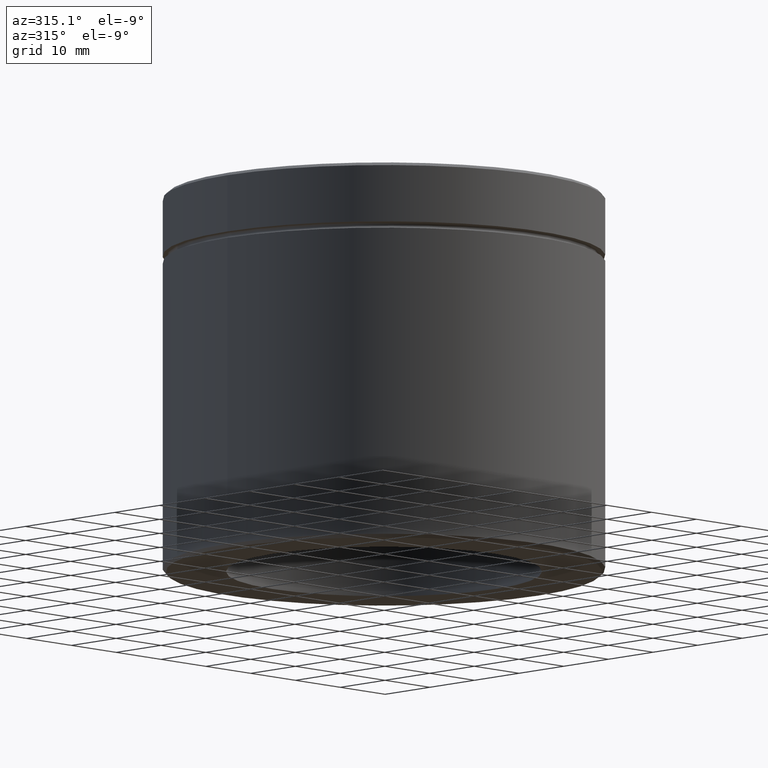
[diagram: clean part render]
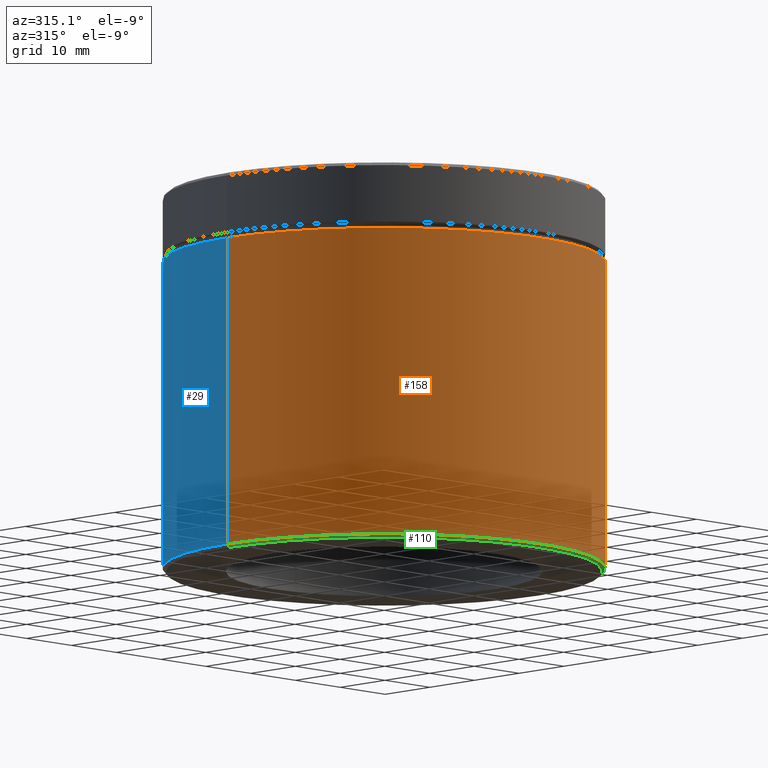
[diagram: same view with three faces highlighted in distinct colors, each labeled with its STEP entity id]
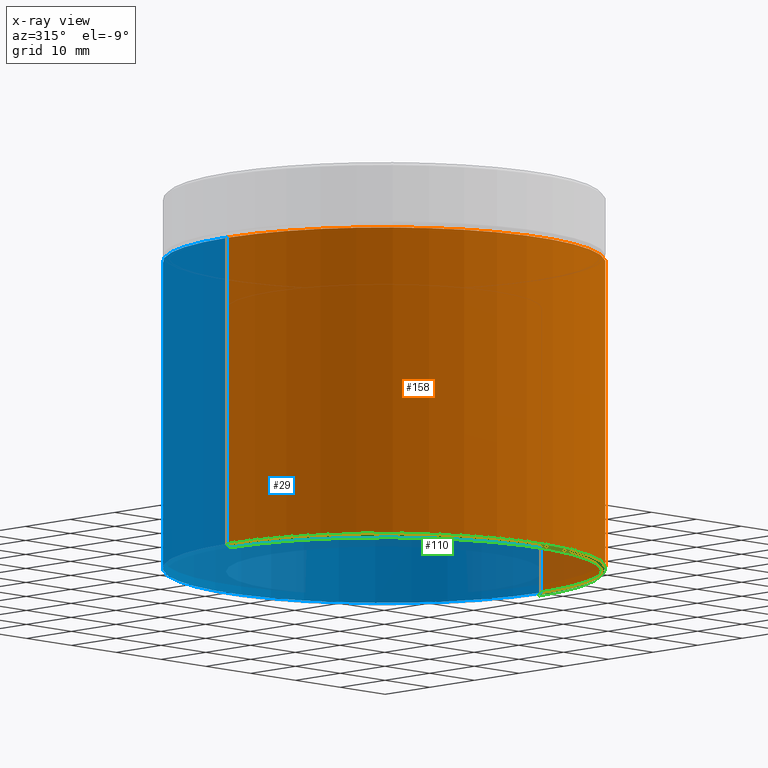
[diagram: x-ray of the same camera — body ghosted, the three highlighted faces saturated]
A machine part, auxiliary view with three faces highlighted in distinct colors.
The next image is the same camera in x-ray (body ghosted, the three faces saturated) — at least one of them is partly hidden behind the body in this view.
Their STEP definitions:

[orange] entity #158 — the highlighted cylindrical surface (partial cylindrical patch) has radius 35 mm, axis along (-0, -0, 1).
#10 = VECTOR ( 'NONE', #418, 1000.000000000000000 ) ;
#23 = EDGE_CURVE ( 'NONE', #166, #345, #64, .T. ) ;
#30 = CYLINDRICAL_SURFACE ( 'NONE', #56, 35.00000000000000000 ) ;
#32 = AXIS2_PLACEMENT_3D ( 'NONE', #61, #53, #186 ) ;
#41 = VERTEX_POINT ( 'NONE', #385 ) ;
#53 = DIRECTION ( 'NONE',  ( -0.000000000000000000, -0.000000000000000000, 1.000000000000000000 ) ) ;
#56 = AXIS2_PLACEMENT_3D ( 'NONE', #393, #446, #529 ) ;
#60 = LINE ( 'NONE', #547, #10 ) ;
#61 = CARTESIAN_POINT ( 'NONE',  ( 0.000000000000000000, 0.000000000000000000, -59.50000000000001421 ) ) ;
#64 = CIRCLE ( 'NONE', #153, 35.00000000000000000 ) ;
#74 = EDGE_LOOP ( 'NONE', ( #264, #382, #461, #257 ) ) ;
#77 = CARTESIAN_POINT ( 'NONE',  ( 0.000000000000000000, 0.000000000000000000, -10.50000000000000000 ) ) ;
#95 = CARTESIAN_POINT ( 'NONE',  ( 35.00000000000000000, 0.000000000000000000, -59.50000000000001421 ) ) ;
#127 = CARTESIAN_POINT ( 'NONE',  ( -35.00000000000000000, 4.286263797015736496E-15, -10.50000000000000000 ) ) ;
#148 = VECTOR ( 'NONE', #241, 1000.000000000000000 ) ;
#153 = AXIS2_PLACEMENT_3D ( 'NONE', #77, #554, #291 ) ;
#158 = ADVANCED_FACE ( 'NONE', ( #492 ), #30, .T. ) ;
#166 = VERTEX_POINT ( 'NONE', #127 ) ;
#186 = DIRECTION ( 'NONE',  ( -1.000000000000000000, 0.000000000000000000, 0.000000000000000000 ) ) ;
#241 = DIRECTION ( 'NONE',  ( -0.000000000000000000, -0.000000000000000000, 1.000000000000000000 ) ) ;
#257 = ORIENTED_EDGE ( 'NONE', *, *, #23, .F. ) ;
#264 = ORIENTED_EDGE ( 'NONE', *, *, #426, .F. ) ;
#279 = CIRCLE ( 'NONE', #32, 35.00000000000000000 ) ;
#291 = DIRECTION ( 'NONE',  ( 1.000000000000000000, 0.000000000000000000, 0.000000000000000000 ) ) ;
#299 = EDGE_CURVE ( 'NONE', #41, #439, #279, .T. ) ;
#345 = VERTEX_POINT ( 'NONE', #508 ) ;
#382 = ORIENTED_EDGE ( 'NONE', *, *, #299, .T. ) ;
#385 = CARTESIAN_POINT ( 'NONE',  ( -35.00000000000000000, 4.286263797015736496E-15, -59.50000000000001421 ) ) ;
#393 = CARTESIAN_POINT ( 'NONE',  ( 0.000000000000000000, 0.000000000000000000, 0.000000000000000000 ) ) ;
#418 = DIRECTION ( 'NONE',  ( -0.000000000000000000, -0.000000000000000000, 1.000000000000000000 ) ) ;
#426 = EDGE_CURVE ( 'NONE', #41, #166, #567, .T. ) ;
#439 = VERTEX_POINT ( 'NONE', #95 ) ;
#446 = DIRECTION ( 'NONE',  ( -0.000000000000000000, -0.000000000000000000, 1.000000000000000000 ) ) ;
#461 = ORIENTED_EDGE ( 'NONE', *, *, #569, .T. ) ;
#463 = CARTESIAN_POINT ( 'NONE',  ( -35.00000000000000000, 4.286263797015736496E-15, 0.000000000000000000 ) ) ;
#492 = FACE_OUTER_BOUND ( 'NONE', #74, .T. ) ;
#508 = CARTESIAN_POINT ( 'NONE',  ( 35.00000000000000000, 0.000000000000000000, -10.50000000000000000 ) ) ;
#529 = DIRECTION ( 'NONE',  ( 1.000000000000000000, 0.000000000000000000, 0.000000000000000000 ) ) ;
#547 = CARTESIAN_POINT ( 'NONE',  ( 35.00000000000000000, 0.000000000000000000, 0.000000000000000000 ) ) ;
#554 = DIRECTION ( 'NONE',  ( -0.000000000000000000, -0.000000000000000000, 1.000000000000000000 ) ) ;
#567 = LINE ( 'NONE', #463, #148 ) ;
#569 = EDGE_CURVE ( 'NONE', #439, #345, #60, .T. ) ;

[blue] entity #29 — the highlighted cylindrical surface (partial cylindrical patch) has radius 35 mm, axis along (-0, -0, 1).
#10 = VECTOR ( 'NONE', #418, 1000.000000000000000 ) ;
#24 = AXIS2_PLACEMENT_3D ( 'NONE', #118, #256, #258 ) ;
#29 = ADVANCED_FACE ( 'NONE', ( #477 ), #551, .T. ) ;
#41 = VERTEX_POINT ( 'NONE', #385 ) ;
#60 = LINE ( 'NONE', #547, #10 ) ;
#70 = ORIENTED_EDGE ( 'NONE', *, *, #76, .F. ) ;
#73 = CIRCLE ( 'NONE', #366, 35.00000000000000000 ) ;
#76 = EDGE_CURVE ( 'NONE', #345, #166, #73, .T. ) ;
#95 = CARTESIAN_POINT ( 'NONE',  ( 35.00000000000000000, 0.000000000000000000, -59.50000000000001421 ) ) ;
#115 = DIRECTION ( 'NONE',  ( 1.000000000000000000, 0.000000000000000000, 0.000000000000000000 ) ) ;
#118 = CARTESIAN_POINT ( 'NONE',  ( 0.000000000000000000, 0.000000000000000000, -59.50000000000001421 ) ) ;
#127 = CARTESIAN_POINT ( 'NONE',  ( -35.00000000000000000, 4.286263797015736496E-15, -10.50000000000000000 ) ) ;
#148 = VECTOR ( 'NONE', #241, 1000.000000000000000 ) ;
#160 = CARTESIAN_POINT ( 'NONE',  ( 0.000000000000000000, 0.000000000000000000, -10.50000000000000000 ) ) ;
#166 = VERTEX_POINT ( 'NONE', #127 ) ;
#187 = EDGE_CURVE ( 'NONE', #439, #41, #230, .T. ) ;
#230 = CIRCLE ( 'NONE', #24, 35.00000000000000000 ) ;
#241 = DIRECTION ( 'NONE',  ( -0.000000000000000000, -0.000000000000000000, 1.000000000000000000 ) ) ;
#244 = CARTESIAN_POINT ( 'NONE',  ( 0.000000000000000000, 0.000000000000000000, 0.000000000000000000 ) ) ;
#251 = DIRECTION ( 'NONE',  ( -0.000000000000000000, -0.000000000000000000, 1.000000000000000000 ) ) ;
#256 = DIRECTION ( 'NONE',  ( -0.000000000000000000, -0.000000000000000000, 1.000000000000000000 ) ) ;
#258 = DIRECTION ( 'NONE',  ( -1.000000000000000000, 0.000000000000000000, 0.000000000000000000 ) ) ;
#316 = ORIENTED_EDGE ( 'NONE', *, *, #426, .T. ) ;
#320 = EDGE_LOOP ( 'NONE', ( #513, #316, #70, #485 ) ) ;
#345 = VERTEX_POINT ( 'NONE', #508 ) ;
#366 = AXIS2_PLACEMENT_3D ( 'NONE', #160, #515, #115 ) ;
#385 = CARTESIAN_POINT ( 'NONE',  ( -35.00000000000000000, 4.286263797015736496E-15, -59.50000000000001421 ) ) ;
#418 = DIRECTION ( 'NONE',  ( -0.000000000000000000, -0.000000000000000000, 1.000000000000000000 ) ) ;
#420 = AXIS2_PLACEMENT_3D ( 'NONE', #244, #251, #470 ) ;
#426 = EDGE_CURVE ( 'NONE', #41, #166, #567, .T. ) ;
#439 = VERTEX_POINT ( 'NONE', #95 ) ;
#463 = CARTESIAN_POINT ( 'NONE',  ( -35.00000000000000000, 4.286263797015736496E-15, 0.000000000000000000 ) ) ;
#470 = DIRECTION ( 'NONE',  ( 1.000000000000000000, 0.000000000000000000, 0.000000000000000000 ) ) ;
#477 = FACE_OUTER_BOUND ( 'NONE', #320, .T. ) ;
#485 = ORIENTED_EDGE ( 'NONE', *, *, #569, .F. ) ;
#508 = CARTESIAN_POINT ( 'NONE',  ( 35.00000000000000000, 0.000000000000000000, -10.50000000000000000 ) ) ;
#513 = ORIENTED_EDGE ( 'NONE', *, *, #187, .T. ) ;
#515 = DIRECTION ( 'NONE',  ( -0.000000000000000000, -0.000000000000000000, 1.000000000000000000 ) ) ;
#547 = CARTESIAN_POINT ( 'NONE',  ( 35.00000000000000000, 0.000000000000000000, 0.000000000000000000 ) ) ;
#551 = CYLINDRICAL_SURFACE ( 'NONE', #420, 35.00000000000000000 ) ;
#567 = LINE ( 'NONE', #463, #148 ) ;
#569 = EDGE_CURVE ( 'NONE', #439, #345, #60, .T. ) ;

[green] entity #110 — the highlighted conical surface has half-angle 45 deg.
#14 = DIRECTION ( 'NONE',  ( -0.7071067811865426878, 8.659560562354874926E-17, 0.7071067811865524577 ) ) ;
#19 = CARTESIAN_POINT ( 'NONE',  ( -34.50000000000002132, 4.255647627037053498E-15, -60.00000000000000000 ) ) ;
#32 = AXIS2_PLACEMENT_3D ( 'NONE', #61, #53, #186 ) ;
#36 = CARTESIAN_POINT ( 'NONE',  ( 35.00000000000000000, 0.000000000000000000, -59.50000000000001421 ) ) ;
#41 = VERTEX_POINT ( 'NONE', #385 ) ;
#46 = ORIENTED_EDGE ( 'NONE', *, *, #324, .F. ) ;
#52 = EDGE_CURVE ( 'NONE', #372, #530, #274, .T. ) ;
#53 = DIRECTION ( 'NONE',  ( -0.000000000000000000, -0.000000000000000000, 1.000000000000000000 ) ) ;
#61 = CARTESIAN_POINT ( 'NONE',  ( 0.000000000000000000, 0.000000000000000000, -59.50000000000001421 ) ) ;
#63 = ORIENTED_EDGE ( 'NONE', *, *, #299, .F. ) ;
#85 = DIRECTION ( 'NONE',  ( 0.7071067811865426878, 0.000000000000000000, 0.7071067811865524577 ) ) ;
#95 = CARTESIAN_POINT ( 'NONE',  ( 35.00000000000000000, 0.000000000000000000, -59.50000000000001421 ) ) ;
#110 = ADVANCED_FACE ( 'NONE', ( #303 ), #146, .T. ) ;
#121 = DIRECTION ( 'NONE',  ( 1.000000000000000000, 0.000000000000000000, 0.000000000000000000 ) ) ;
#131 = LINE ( 'NONE', #36, #391 ) ;
#146 = CONICAL_SURFACE ( 'NONE', #413, 35.00000000000000000, 0.7853981633974415066 ) ;
#186 = DIRECTION ( 'NONE',  ( -1.000000000000000000, 0.000000000000000000, 0.000000000000000000 ) ) ;
#199 = EDGE_CURVE ( 'NONE', #372, #439, #131, .T. ) ;
#201 = CARTESIAN_POINT ( 'NONE',  ( 0.000000000000000000, 0.000000000000000000, -60.00000000000000000 ) ) ;
#205 = VECTOR ( 'NONE', #14, 1000.000000000000000 ) ;
#249 = DIRECTION ( 'NONE',  ( 0.000000000000000000, 0.000000000000000000, -1.000000000000000000 ) ) ;
#274 = CIRCLE ( 'NONE', #533, 34.50000000000002132 ) ;
#279 = CIRCLE ( 'NONE', #32, 35.00000000000000000 ) ;
#299 = EDGE_CURVE ( 'NONE', #41, #439, #279, .T. ) ;
#303 = FACE_OUTER_BOUND ( 'NONE', #497, .T. ) ;
#309 = ORIENTED_EDGE ( 'NONE', *, *, #52, .F. ) ;
#324 = EDGE_CURVE ( 'NONE', #530, #41, #377, .T. ) ;
#372 = VERTEX_POINT ( 'NONE', #450 ) ;
#375 = CARTESIAN_POINT ( 'NONE',  ( -35.00000000000000000, 4.286263797015736496E-15, -59.50000000000001421 ) ) ;
#377 = LINE ( 'NONE', #375, #205 ) ;
#385 = CARTESIAN_POINT ( 'NONE',  ( -35.00000000000000000, 4.286263797015736496E-15, -59.50000000000001421 ) ) ;
#391 = VECTOR ( 'NONE', #85, 1000.000000000000000 ) ;
#398 = CARTESIAN_POINT ( 'NONE',  ( 0.000000000000000000, 0.000000000000000000, -59.50000000000001421 ) ) ;
#413 = AXIS2_PLACEMENT_3D ( 'NONE', #398, #568, #121 ) ;
#439 = VERTEX_POINT ( 'NONE', #95 ) ;
#450 = CARTESIAN_POINT ( 'NONE',  ( 34.50000000000002132, 0.000000000000000000, -60.00000000000000000 ) ) ;
#474 = ORIENTED_EDGE ( 'NONE', *, *, #199, .T. ) ;
#497 = EDGE_LOOP ( 'NONE', ( #46, #309, #474, #63 ) ) ;
#530 = VERTEX_POINT ( 'NONE', #19 ) ;
#533 = AXIS2_PLACEMENT_3D ( 'NONE', #201, #249, #560 ) ;
#560 = DIRECTION ( 'NONE',  ( -1.000000000000000000, 0.000000000000000000, 0.000000000000000000 ) ) ;
#568 = DIRECTION ( 'NONE',  ( -0.000000000000000000, -0.000000000000000000, 1.000000000000000000 ) ) ;